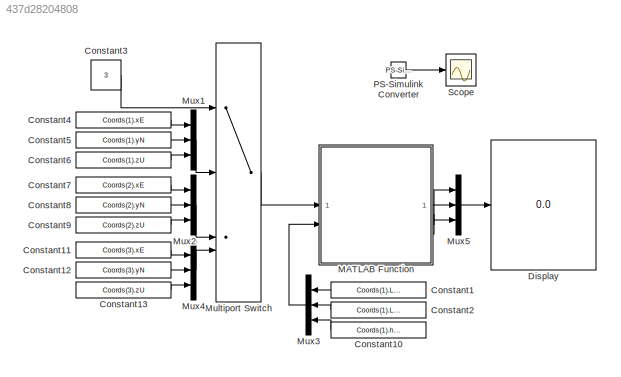
MODEL slx_437d28204808
KIND model
CONFIG AbsTol = 1e-3
CONFIG PostLoadFcn = Coords = Coords_WGSTest;
CONFIG SolverName = VariableStepAuto
BLOCK [Constant] Constant1
  Value = Coords(1).Lat
BLOCK [Constant] Constant10
  Value = Coords(1).hEll
BLOCK [Constant] Constant11
  Value = Coords(3).xE
BLOCK [Constant] Constant12
  Value = Coords(3).yN
BLOCK [Constant] Constant13
  Value = Coords(3).zU
BLOCK [Constant] Constant2
  Value = Coords(1).Lon
BLOCK [Constant] Constant3
  Value = 3
BLOCK [Constant] Constant4
  Value = Coords(1).xE
BLOCK [Constant] Constant5
  Value = Coords(1).yN
BLOCK [Constant] Constant6
  Value = Coords(1).zU
BLOCK [Constant] Constant7
  Value = Coords(2).xE
BLOCK [Constant] Constant8
  Value = Coords(2).yN
BLOCK [Constant] Constant9
  Value = Coords(2).zU
BLOCK [Display] Display
  Decimation = 1
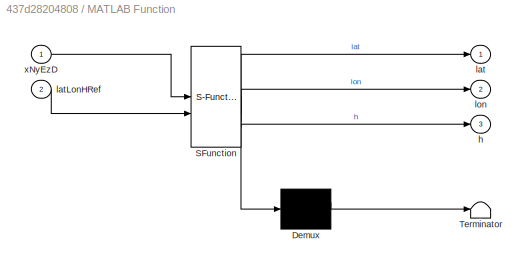
BLOCK [SubSystem] MATLAB Function
  ErrorFcn = Stateflow.Translate.translate
  LibrarySourceBlock = simulink/User-Defined\nFunctions/MATLAB Function
  PermitHierarchicalResolution = ExplicitOnly
  SFBlockType = MATLAB Function
  TreatAsAtomicUnit = on
BLOCK [Demux] MATLAB Function/ Demux 
  Outputs = 1
BLOCK [S-Function] MATLAB Function/ SFunction 
  EnableBusSupport = off
  FunctionName = sf_sfun
  PortCounts = [2 4]
  SFcnIsStateOwnerBlock = off
  SFunctionDeploymentMode = off
  Tag = Stateflow S-Function 2
BLOCK [Terminator] MATLAB Function/ Terminator 
BLOCK [Outport] MATLAB Function/h
  Port = 3
BLOCK [Outport] MATLAB Function/lat
BLOCK [Inport] MATLAB Function/latLonHRef
  Port = 2
BLOCK [Outport] MATLAB Function/lon
  Port = 2
BLOCK [Inport] MATLAB Function/xNyEzD
BLOCK [MultiPortSwitch] Multiport Switch
  InputSameDT = off
  SaturateOnIntegerOverflow = off
BLOCK [Mux] Mux1
  DisplayOption = bar
  Inputs = 3
BLOCK [Mux] Mux2
  DisplayOption = bar
  Inputs = 3
BLOCK [Mux] Mux3
  DisplayOption = bar
  Inputs = 3
BLOCK [Mux] Mux4
  DisplayOption = bar
  Inputs = 3
BLOCK [Mux] Mux5
  DisplayOption = bar
  Inputs = 3
BLOCK [Reference] PS-Simulink Converter  REF=nesl_utility/PS-Simulink
Converter
  SourceBlock = nesl_utility/PS-Simulink\nConverter
  SourceType = PS-Simulink\nConverter
BLOCK [Scope] Scope
  Floating = off
  GraphicalSettings = {"GraphicalSettings":{"LegacySettings":true,"Style":{"Style":{"CurrentConfiguration":"extmgr.ConfigurationSet","MinimizeControls":"false","PlotType":"Auto","Version":"2019b"}}}}
  NumInputPorts = 1
  WasSavedAsWebScope = on
LINE Constant10:1 -> Mux3:3
LINE Constant11:1 -> Mux4:1
LINE Constant12:1 -> Mux4:2
LINE Constant13:1 -> Mux4:3
LINE Constant1:1 -> Mux3:1
LINE Constant2:1 -> Mux3:2
LINE Constant3:1 -> Multiport Switch:1
LINE Constant4:1 -> Mux1:1
LINE Constant5:1 -> Mux1:2
LINE Constant6:1 -> Mux1:3
LINE Constant7:1 -> Mux2:1
LINE Constant8:1 -> Mux2:2
LINE Constant9:1 -> Mux2:3
LINE MATLAB Function:1 -> Mux5:1
LINE MATLAB Function:2 -> Mux5:2
LINE MATLAB Function:3 -> Mux5:3
LINE Multiport Switch:1 -> MATLAB Function:1
LINE Mux1:1 -> Multiport Switch:2
LINE Mux2:1 -> Multiport Switch:3
LINE Mux3:1 -> MATLAB Function:2
LINE Mux4:1 -> Multiport Switch:4
LINE Mux5:1 -> Display:1
LINE PS-Simulink Converter:1 -> Scope:1
CHART MATLAB Function states=1 transitions=1
  STATE_LABEL 'eML_blk_kernel()'
  STATE_LABEL 'SCRIPT:\nfunction [lat, lon, h] = XYtoWGS84(xNyEzD,latLonHRef)\n\n[lat, lon, h] = ned2geodetic(...\n    xNyEzD(1),xNyEzD(2),xNyEzD(3),...\n    latLonHRef(1),latLonHRef(2),latLonHRef(3),...\n    wgs84Ellipsoid);\n\n'
CHART  states=0 transitions=0
